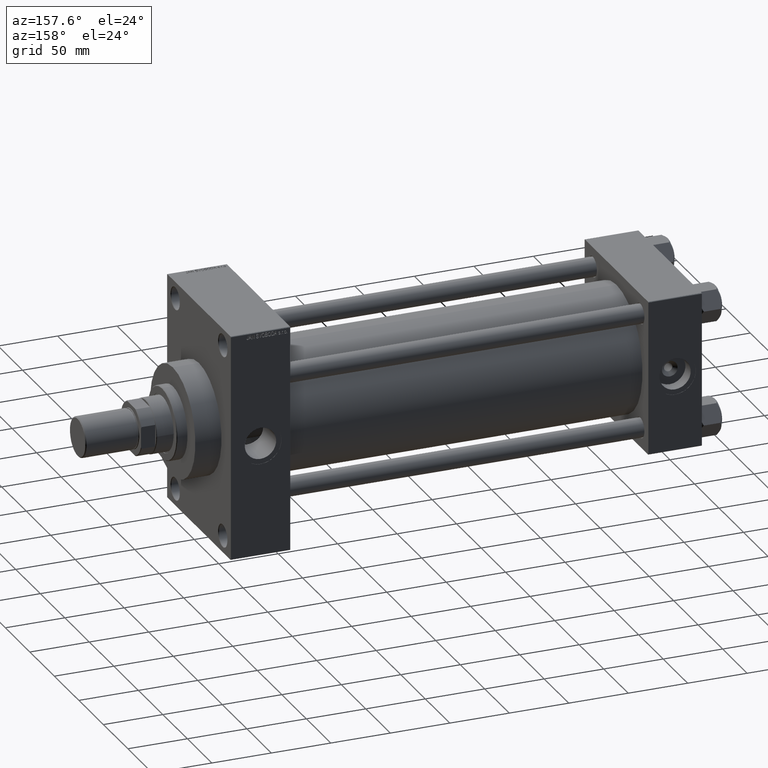
[diagram: clean part render]
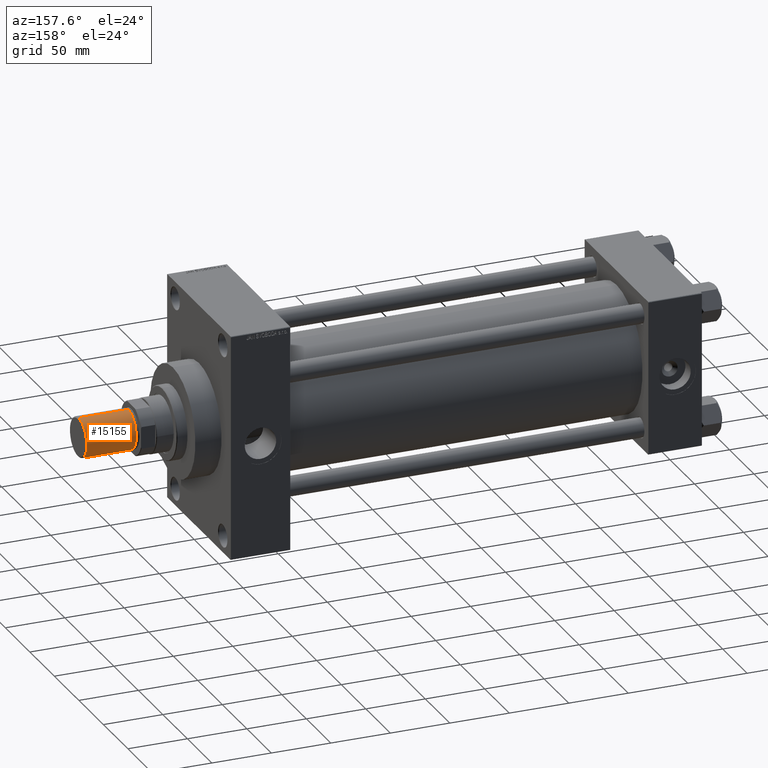
[diagram: same view with one face highlighted and labeled with its STEP entity id]
A machine part, auxiliary view. The second image highlights one B-rep face of the part: STEP entity #15155.
In plain terms, the highlighted cylindrical surface (edge-blend (fillet) strip) has radius 16.5 mm, axis along (1, -0, -0).
Its self-contained STEP definition (entity closure, byte-faithful):
#228 = FACE_OUTER_BOUND ( 'NONE', #22323, .T. ) ;
#2113 = AXIS2_PLACEMENT_3D ( 'NONE', #18461, #45128, #25847 ) ;
#3009 = VERTEX_POINT ( 'NONE', #19754 ) ;
#3027 = ORIENTED_EDGE ( 'NONE', *, *, #27780, .T. ) ;
#3267 = DIRECTION ( 'NONE',  ( -0.000000000000000000, -0.000000000000000000, -1.000000000000000000 ) ) ;
#3382 = VECTOR ( 'NONE', #47278, 1000.000000000000000 ) ;
#3952 = VECTOR ( 'NONE', #3267, 1000.000000000000000 ) ;
#5544 = EDGE_CURVE ( 'NONE', #49645, #10624, #47049, .T. ) ;
#5674 = AXIS2_PLACEMENT_3D ( 'NONE', #36927, #48357, #25752 ) ;
#7584 = VERTEX_POINT ( 'NONE', #32995 ) ;
#8115 = DIRECTION ( 'NONE',  ( -0.000000000000000000, -0.000000000000000000, -1.000000000000000000 ) ) ;
#10624 = VERTEX_POINT ( 'NONE', #46186 ) ;
#11175 = ORIENTED_EDGE ( 'NONE', *, *, #11996, .F. ) ;
#11682 = CARTESIAN_POINT ( 'NONE',  ( 0.000000000000000000, 0.000000000000000000, 42.50000000000000000 ) ) ;
#11996 = EDGE_CURVE ( 'NONE', #7584, #3009, #32975, .T. ) ;
#15155 = ADVANCED_FACE ( 'NONE', ( #228 ), #34543, .T. ) ;
#16039 = AXIS2_PLACEMENT_3D ( 'NONE', #11682, #8115, #31727 ) ;
#18461 = CARTESIAN_POINT ( 'NONE',  ( 0.000000000000000000, 0.000000000000000000, 42.50000000000000000 ) ) ;
#19754 = CARTESIAN_POINT ( 'NONE',  ( -16.50000000000000000, 0.000000000000000000, 42.50000000000000000 ) ) ;
#21036 = ORIENTED_EDGE ( 'NONE', *, *, #5544, .T. ) ;
#21644 = EDGE_CURVE ( 'NONE', #3009, #10624, #30943, .T. ) ;
#22323 = EDGE_LOOP ( 'NONE', ( #11175, #3027, #21036, #42943 ) ) ;
#25752 = DIRECTION ( 'NONE',  ( 1.000000000000000000, 0.000000000000000000, 0.000000000000000000 ) ) ;
#25847 = DIRECTION ( 'NONE',  ( 1.000000000000000000, 0.000000000000000000, 0.000000000000000000 ) ) ;
#27780 = EDGE_CURVE ( 'NONE', #7584, #49645, #46779, .T. ) ;
#30943 = LINE ( 'NONE', #34495, #3952 ) ;
#31727 = DIRECTION ( 'NONE',  ( -1.000000000000000000, 0.000000000000000000, 0.000000000000000000 ) ) ;
#32975 = CIRCLE ( 'NONE', #2113, 16.50000000000000000 ) ;
#32995 = CARTESIAN_POINT ( 'NONE',  ( 16.50000000000000000, 2.020667218593133100E-15, 42.50000000000000000 ) ) ;
#34495 = CARTESIAN_POINT ( 'NONE',  ( -16.50000000000000000, 0.000000000000000000, 42.50000000000000000 ) ) ;
#34543 = CYLINDRICAL_SURFACE ( 'NONE', #16039, 16.50000000000000000 ) ;
#36927 = CARTESIAN_POINT ( 'NONE',  ( 0.000000000000000000, 0.000000000000000000, 0.8000000000000020428 ) ) ;
#40167 = CARTESIAN_POINT ( 'NONE',  ( 16.50000000000000000, 2.020667218593133100E-15, 42.50000000000000000 ) ) ;
#42943 = ORIENTED_EDGE ( 'NONE', *, *, #21644, .F. ) ;
#45128 = DIRECTION ( 'NONE',  ( 0.000000000000000000, 0.000000000000000000, 1.000000000000000000 ) ) ;
#46186 = CARTESIAN_POINT ( 'NONE',  ( -16.50000000000000000, 0.000000000000000000, 0.8000000000000020428 ) ) ;
#46779 = LINE ( 'NONE', #40167, #3382 ) ;
#47049 = CIRCLE ( 'NONE', #5674, 16.50000000000000000 ) ;
#47201 = CARTESIAN_POINT ( 'NONE',  ( 16.50000000000000000, 2.020667218593133100E-15, 0.8000000000000020428 ) ) ;
#47278 = DIRECTION ( 'NONE',  ( -0.000000000000000000, -0.000000000000000000, -1.000000000000000000 ) ) ;
#48357 = DIRECTION ( 'NONE',  ( -0.000000000000000000, -0.000000000000000000, 1.000000000000000000 ) ) ;
#49645 = VERTEX_POINT ( 'NONE', #47201 ) ;